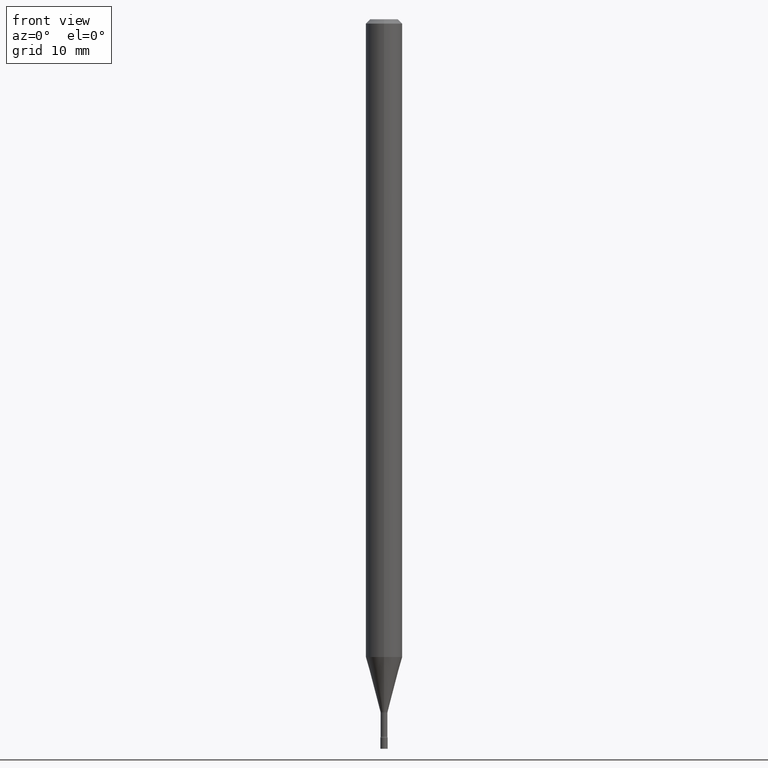
[diagram: clean part render]
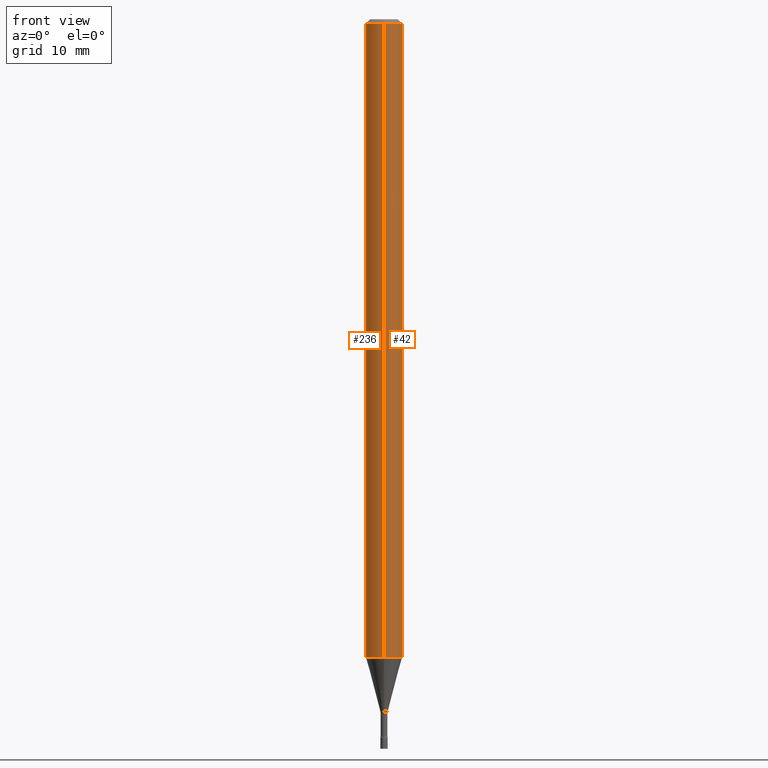
[diagram: same view with one multi-face feature highlighted, each face labeled with its STEP entity id]
A machine part, front view. The highlighted faces form ONE feature: a constant-radius fillet chain: 2 tangent blend faces with common blend radius 1.5875 mm. The faces share edges in the B-rep.
Their STEP definitions:
[1] entity #236 (Cylinder):
#3 = CARTESIAN_POINT ( 'NONE',  ( 0.000000000000000000, 0.000000000000000000, 0.000000000000000000 ) ) ;
#14 = AXIS2_PLACEMENT_3D ( 'NONE', #246, #44, #407 ) ;
#33 = CIRCLE ( 'NONE', #14, 0.06250000000000000000 ) ;
#34 = CARTESIAN_POINT ( 'NONE',  ( -4.364351673553912750E-16, -0.06250000000000005551, -0.01499999999999981209 ) ) ;
#44 = DIRECTION ( 'NONE',  ( -2.445407738250845561E-29, 3.491568791600821507E-15, 1.000000000000000000 ) ) ;
#51 = CARTESIAN_POINT ( 'NONE',  ( -4.364351673553382734E-16, -0.06250000000000764666, -2.185598421515879686 ) ) ;
#61 = AXIS2_PLACEMENT_3D ( 'NONE', #160, #288, #485 ) ;
#65 = EDGE_CURVE ( 'NONE', #227, #109, #33, .T. ) ;
#66 = ORIENTED_EDGE ( 'NONE', *, *, #245, .T. ) ;
#73 = ORIENTED_EDGE ( 'NONE', *, *, #192, .T. ) ;
#77 = CARTESIAN_POINT ( 'NONE',  ( 4.440892098501163573E-16, 0.06249999999999995143, -0.01500000000000024751 ) ) ;
#109 = VERTEX_POINT ( 'NONE', #34 ) ;
#122 = CARTESIAN_POINT ( 'NONE',  ( 4.440892098501159629E-16, 0.06249999999999236722, -2.185598421515880130 ) ) ;
#123 = VECTOR ( 'NONE', #265, 39.37007874015748143 ) ;
#132 = AXIS2_PLACEMENT_3D ( 'NONE', #3, #324, #242 ) ;
#160 = CARTESIAN_POINT ( 'NONE',  ( 5.344679292683766373E-29, -7.631167239536863918E-15, -2.185598421515880130 ) ) ;
#192 = EDGE_CURVE ( 'NONE', #373, #109, #365, .T. ) ;
#224 = CIRCLE ( 'NONE', #61, 0.06250000000000000000 ) ;
#227 = VERTEX_POINT ( 'NONE', #77 ) ;
#230 = VERTEX_POINT ( 'NONE', #122 ) ;
#236 = ADVANCED_FACE ( 'NONE', ( #279 ), #441, .T. ) ;
#237 = CARTESIAN_POINT ( 'NONE',  ( -4.364351673553916201E-16, -0.06250000000000000000, 2.182230494750513442E-16 ) ) ;
#242 = DIRECTION ( 'NONE',  ( -6.982962677686265922E-15, -1.000000000000000000, 3.491568791600821507E-15 ) ) ;
#245 = EDGE_CURVE ( 'NONE', #230, #373, #224, .T. ) ;
#246 = CARTESIAN_POINT ( 'NONE',  ( 3.668111607376275313E-31, -5.237353187401242615E-17, -0.01500000000000003067 ) ) ;
#252 = CARTESIAN_POINT ( 'NONE',  ( 4.440892098500625669E-16, 0.06250000000000000000, -2.182230494750513442E-16 ) ) ;
#264 = ORIENTED_EDGE ( 'NONE', *, *, #65, .F. ) ;
#265 = DIRECTION ( 'NONE',  ( -2.445407738250845561E-29, 3.491568791600821113E-15, 1.000000000000000000 ) ) ;
#279 = FACE_OUTER_BOUND ( 'NONE', #426, .T. ) ;
#288 = DIRECTION ( 'NONE',  ( -2.445407738250845561E-29, 3.491568791600821507E-15, 1.000000000000000000 ) ) ;
#304 = LINE ( 'NONE', #252, #123 ) ;
#324 = DIRECTION ( 'NONE',  ( -2.445407738250845561E-29, 3.491568791600821507E-15, 1.000000000000000000 ) ) ;
#365 = LINE ( 'NONE', #237, #481 ) ;
#373 = VERTEX_POINT ( 'NONE', #51 ) ;
#401 = ORIENTED_EDGE ( 'NONE', *, *, #433, .F. ) ;
#407 = DIRECTION ( 'NONE',  ( -6.982962677686265922E-15, -1.000000000000000000, 3.483106191921935554E-15 ) ) ;
#426 = EDGE_LOOP ( 'NONE', ( #401, #66, #73, #264 ) ) ;
#433 = EDGE_CURVE ( 'NONE', #230, #227, #304, .T. ) ;
#441 = CYLINDRICAL_SURFACE ( 'NONE', #132, 0.06250000000000000000 ) ;
#450 = DIRECTION ( 'NONE',  ( -2.445407738250845561E-29, 3.491568791600821113E-15, 1.000000000000000000 ) ) ;
#481 = VECTOR ( 'NONE', #450, 39.37007874015748143 ) ;
#485 = DIRECTION ( 'NONE',  ( -6.982962677686265922E-15, -1.000000000000000000, 4.370956789862821150E-15 ) ) ;
[2] entity #42 (Cylinder):
#4 = DIRECTION ( 'NONE',  ( -6.982962677686265922E-15, -1.000000000000000000, 4.370956789862821150E-15 ) ) ;
#17 = ORIENTED_EDGE ( 'NONE', *, *, #286, .F. ) ;
#30 = EDGE_CURVE ( 'NONE', #373, #230, #250, .T. ) ;
#34 = CARTESIAN_POINT ( 'NONE',  ( -4.364351673553912750E-16, -0.06250000000000005551, -0.01499999999999981209 ) ) ;
#42 = ADVANCED_FACE ( 'NONE', ( #167 ), #130, .T. ) ;
#46 = DIRECTION ( 'NONE',  ( -6.982962677686265922E-15, -1.000000000000000000, 3.491568791600821507E-15 ) ) ;
#51 = CARTESIAN_POINT ( 'NONE',  ( -4.364351673553382734E-16, -0.06250000000000764666, -2.185598421515879686 ) ) ;
#77 = CARTESIAN_POINT ( 'NONE',  ( 4.440892098501163573E-16, 0.06249999999999995143, -0.01500000000000024751 ) ) ;
#85 = DIRECTION ( 'NONE',  ( -6.982962677686265922E-15, -1.000000000000000000, 3.483106191921935554E-15 ) ) ;
#109 = VERTEX_POINT ( 'NONE', #34 ) ;
#122 = CARTESIAN_POINT ( 'NONE',  ( 4.440892098501159629E-16, 0.06249999999999236722, -2.185598421515880130 ) ) ;
#123 = VECTOR ( 'NONE', #265, 39.37007874015748143 ) ;
#130 = CYLINDRICAL_SURFACE ( 'NONE', #280, 0.06250000000000000000 ) ;
#157 = EDGE_LOOP ( 'NONE', ( #194, #310, #17, #346 ) ) ;
#167 = FACE_OUTER_BOUND ( 'NONE', #157, .T. ) ;
#192 = EDGE_CURVE ( 'NONE', #373, #109, #365, .T. ) ;
#194 = ORIENTED_EDGE ( 'NONE', *, *, #30, .T. ) ;
#207 = CARTESIAN_POINT ( 'NONE',  ( 5.344679292683766373E-29, -7.631167239536863918E-15, -2.185598421515880130 ) ) ;
#227 = VERTEX_POINT ( 'NONE', #77 ) ;
#230 = VERTEX_POINT ( 'NONE', #122 ) ;
#237 = CARTESIAN_POINT ( 'NONE',  ( -4.364351673553916201E-16, -0.06250000000000000000, 2.182230494750513442E-16 ) ) ;
#248 = CARTESIAN_POINT ( 'NONE',  ( 3.668111607376275313E-31, -5.237353187401242615E-17, -0.01500000000000003067 ) ) ;
#250 = CIRCLE ( 'NONE', #471, 0.06250000000000000000 ) ;
#252 = CARTESIAN_POINT ( 'NONE',  ( 4.440892098500625669E-16, 0.06250000000000000000, -2.182230494750513442E-16 ) ) ;
#257 = CARTESIAN_POINT ( 'NONE',  ( 0.000000000000000000, 0.000000000000000000, 0.000000000000000000 ) ) ;
#265 = DIRECTION ( 'NONE',  ( -2.445407738250845561E-29, 3.491568791600821113E-15, 1.000000000000000000 ) ) ;
#280 = AXIS2_PLACEMENT_3D ( 'NONE', #257, #330, #46 ) ;
#286 = EDGE_CURVE ( 'NONE', #109, #227, #363, .T. ) ;
#304 = LINE ( 'NONE', #252, #123 ) ;
#310 = ORIENTED_EDGE ( 'NONE', *, *, #433, .T. ) ;
#330 = DIRECTION ( 'NONE',  ( -2.445407738250845561E-29, 3.491568791600821507E-15, 1.000000000000000000 ) ) ;
#335 = DIRECTION ( 'NONE',  ( -2.445407738250845561E-29, 3.491568791600821507E-15, 1.000000000000000000 ) ) ;
#339 = AXIS2_PLACEMENT_3D ( 'NONE', #248, #414, #85 ) ;
#346 = ORIENTED_EDGE ( 'NONE', *, *, #192, .F. ) ;
#363 = CIRCLE ( 'NONE', #339, 0.06250000000000000000 ) ;
#365 = LINE ( 'NONE', #237, #481 ) ;
#373 = VERTEX_POINT ( 'NONE', #51 ) ;
#414 = DIRECTION ( 'NONE',  ( -2.445407738250845561E-29, 3.491568791600821507E-15, 1.000000000000000000 ) ) ;
#433 = EDGE_CURVE ( 'NONE', #230, #227, #304, .T. ) ;
#450 = DIRECTION ( 'NONE',  ( -2.445407738250845561E-29, 3.491568791600821113E-15, 1.000000000000000000 ) ) ;
#471 = AXIS2_PLACEMENT_3D ( 'NONE', #207, #335, #4 ) ;
#481 = VECTOR ( 'NONE', #450, 39.37007874015748143 ) ;